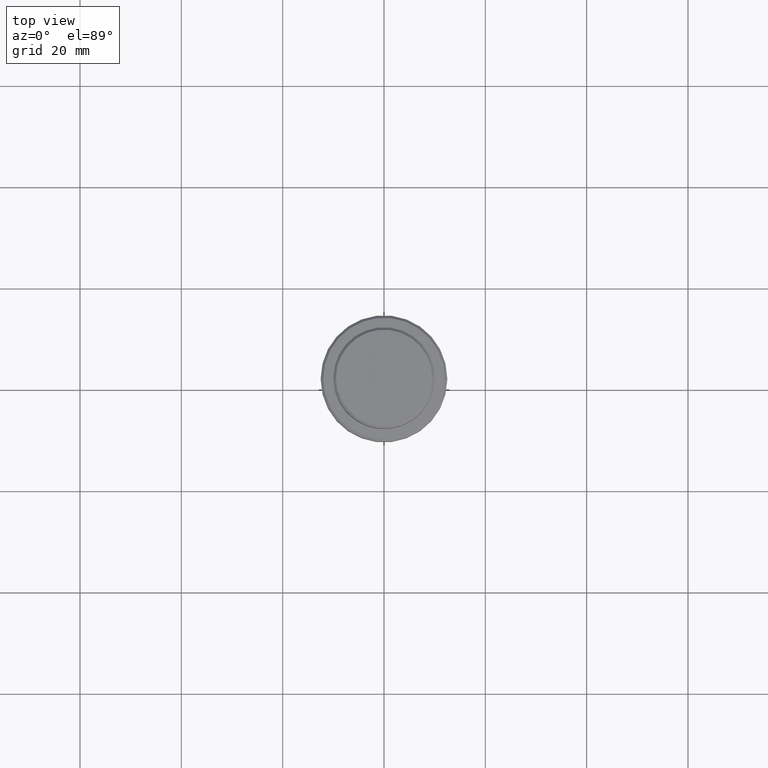
[diagram: clean part render]
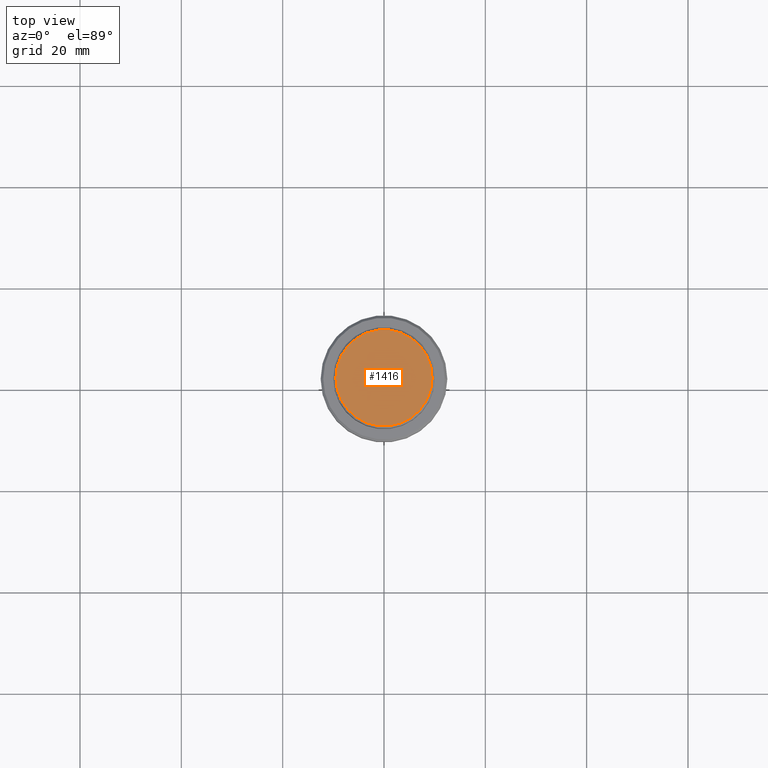
[diagram: same view with one face highlighted and labeled with its STEP entity id]
A machine part, top view. The second image highlights one B-rep face of the part: STEP entity #1416.
In plain terms, the highlighted planar face has unit normal (0, -0, 1).
Its self-contained STEP definition (entity closure, byte-faithful):
#32 = AXIS2_PLACEMENT_3D ( 'NONE', #765, #1310, #643 ) ;
#40 = VERTEX_POINT ( 'NONE', #842 ) ;
#92 = VERTEX_POINT ( 'NONE', #111 ) ;
#111 = CARTESIAN_POINT ( 'NONE',  ( -9.500000000000008882, 0.000000000000000000, 0.000000000000000000 ) ) ;
#147 = CIRCLE ( 'NONE', #1118, 9.500000000000008882 ) ;
#163 = DIRECTION ( 'NONE',  ( -0.000000000000000000, -0.000000000000000000, 1.000000000000000000 ) ) ;
#337 = ORIENTED_EDGE ( 'NONE', *, *, #451, .T. ) ;
#408 = EDGE_LOOP ( 'NONE', ( #337, #1128 ) ) ;
#421 = EDGE_CURVE ( 'NONE', #40, #92, #147, .T. ) ;
#451 = EDGE_CURVE ( 'NONE', #92, #40, #656, .T. ) ;
#607 = DIRECTION ( 'NONE',  ( 1.000000000000000000, 0.000000000000000000, 0.000000000000000000 ) ) ;
#643 = DIRECTION ( 'NONE',  ( 1.000000000000000000, 0.000000000000000000, 0.000000000000000000 ) ) ;
#656 = CIRCLE ( 'NONE', #32, 9.500000000000008882 ) ;
#765 = CARTESIAN_POINT ( 'NONE',  ( 0.000000000000000000, 0.000000000000000000, 0.000000000000000000 ) ) ;
#805 = CARTESIAN_POINT ( 'NONE',  ( 0.000000000000000000, 0.000000000000000000, 0.000000000000000000 ) ) ;
#842 = CARTESIAN_POINT ( 'NONE',  ( 9.500000000000008882, 1.194030629168669864E-15, 0.000000000000000000 ) ) ;
#890 = DIRECTION ( 'NONE',  ( 1.000000000000000000, 0.000000000000000000, 0.000000000000000000 ) ) ;
#1008 = PLANE ( 'NONE',  #1344 ) ;
#1118 = AXIS2_PLACEMENT_3D ( 'NONE', #1263, #163, #607 ) ;
#1128 = ORIENTED_EDGE ( 'NONE', *, *, #421, .T. ) ;
#1206 = DIRECTION ( 'NONE',  ( 0.000000000000000000, -0.000000000000000000, 1.000000000000000000 ) ) ;
#1263 = CARTESIAN_POINT ( 'NONE',  ( 0.000000000000000000, 0.000000000000000000, 0.000000000000000000 ) ) ;
#1310 = DIRECTION ( 'NONE',  ( -0.000000000000000000, -0.000000000000000000, 1.000000000000000000 ) ) ;
#1312 = FACE_OUTER_BOUND ( 'NONE', #408, .T. ) ;
#1344 = AXIS2_PLACEMENT_3D ( 'NONE', #805, #1206, #890 ) ;
#1416 = ADVANCED_FACE ( 'NONE', ( #1312 ), #1008, .T. ) ;